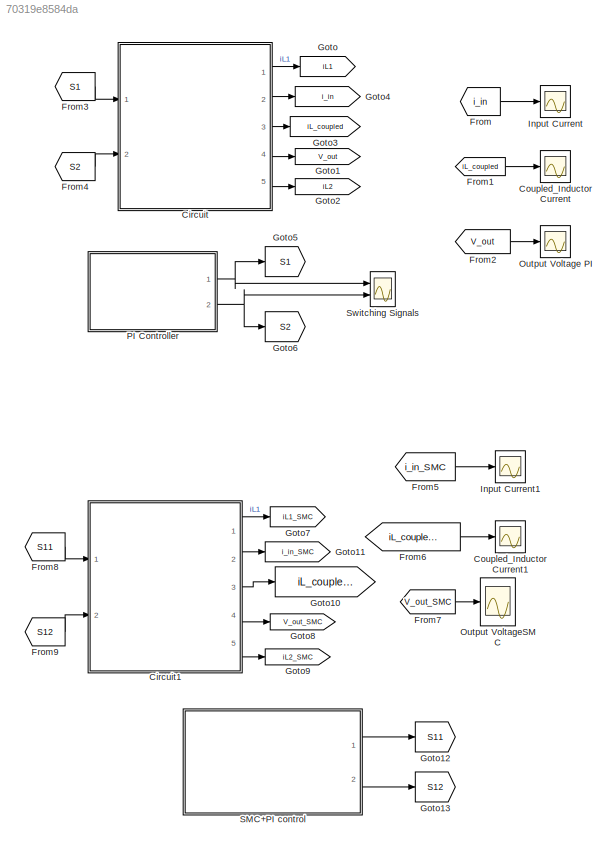
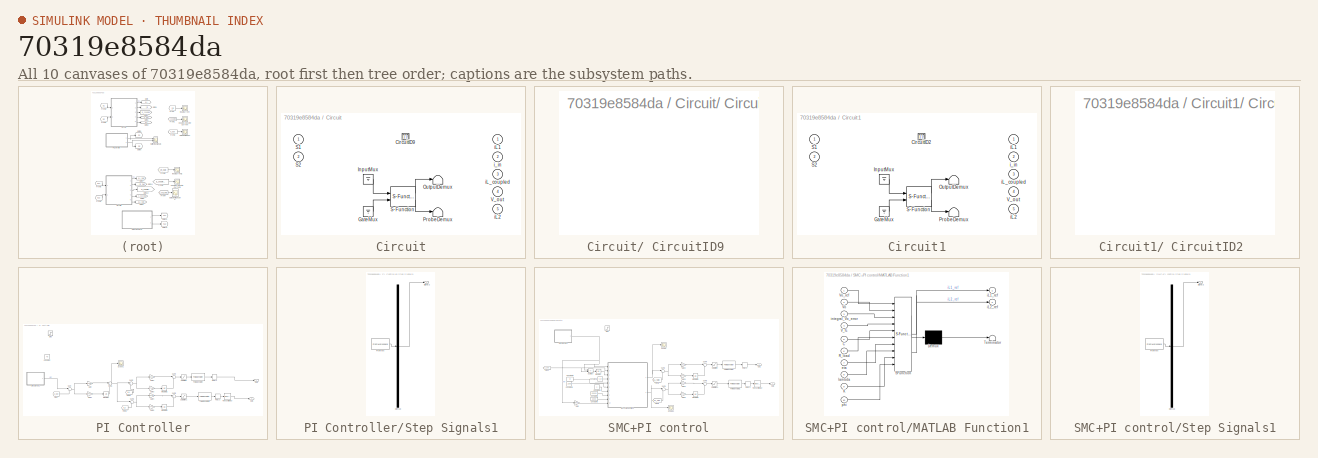
[diagram: thumbnail index - all 10 canvases of the model, root first then tree order]
MODEL slx_70319e8584da
KIND model
CONFIG AbsTol = auto
CONFIG EnableMultiTasking = off
CONFIG FixedStep = auto
CONFIG MaxStep = auto
CONFIG MinStep = auto
CONFIG RelTol = 1e-3
CONFIG SampleTimeConstraint = Unconstrained
CONFIG SolverName = ode1
CONFIG StartTime = 0.0
CONFIG StopTime = 1
BLOCK [SubSystem] Circuit
  CopyFcn = plecs('sl', 203);
  DeleteFcn = plecs('sl', 205);
  DestroyFcn = plecs('sl', 207);
  ErrorFcn = plerrorfcn
  InitFcn = plecs('sl', 214);
  LoadFcn = plecs('sl', 200);
  NameChangeFcn = plecs('sl', 210);
  OpenFcn = plecs('sl', 202);
  Ports = [2, 5]
  PostSaveFcn = plecs('sl', 201);
  PreCopyFcn = plecs('sl', 216);
  PreSaveFcn = plecs('sl', 211);
  RequestExecContextInheritance = off
  ShowPortLabels = FromPortBlockName
  StartFcn = plecs('sl', 208);
  StopFcn = plecs('sl', 209);
  UndoDeleteFcn = plecs('sl', 206);
BLOCK [SubSystem] Circuit/ CircuitID9 
  Ports = []
  RequestExecContextInheritance = off
BLOCK [Ground] Circuit/ GateMux 
BLOCK [Ground] Circuit/ InputMux 
BLOCK [Terminator] Circuit/ OutputDemux 
BLOCK [Terminator] Circuit/ ProbeDemux 
BLOCK [S-Function] Circuit/ S-Function 
  EnableBusSupport = off
  FunctionName = plecs
  Ports = [2, 2]
  SFcnIsStateOwnerBlock = off
  SFunctionDeploymentMode = off
BLOCK [Inport] Circuit/S1
  PortDimensions = 1
BLOCK [Inport] Circuit/S2
  Port = 2
  PortDimensions = 1
BLOCK [Outport] Circuit/V_out
  Port = 4
  PortDimensions = 1
BLOCK [Outport] Circuit/iL1
  PortDimensions = 1
BLOCK [Outport] Circuit/iL2
  Port = 5
  PortDimensions = 1
BLOCK [Outport] Circuit/iL_coupled
  Port = 3
  PortDimensions = 2
BLOCK [Outport] Circuit/i_in
  Port = 2
  PortDimensions = 1
BLOCK [SubSystem] Circuit1
  CopyFcn = plecs('sl', 203);
  DeleteFcn = plecs('sl', 205);
  DestroyFcn = plecs('sl', 207);
  ErrorFcn = plerrorfcn
  InitFcn = plecs('sl', 214);
  LoadFcn = plecs('sl', 200);
  NameChangeFcn = plecs('sl', 210);
  OpenFcn = plecs('sl', 202);
  Ports = [2, 5]
  PostSaveFcn = plecs('sl', 201);
  PreCopyFcn = plecs('sl', 216);
  PreSaveFcn = plecs('sl', 211);
  RequestExecContextInheritance = off
  ShowPortLabels = FromPortBlockName
  StartFcn = plecs('sl', 208);
  StopFcn = plecs('sl', 209);
  UndoDeleteFcn = plecs('sl', 206);
BLOCK [SubSystem] Circuit1/ CircuitID2 
  Ports = []
  RequestExecContextInheritance = off
BLOCK [Ground] Circuit1/ GateMux 
BLOCK [Ground] Circuit1/ InputMux 
BLOCK [Terminator] Circuit1/ OutputDemux 
BLOCK [Terminator] Circuit1/ ProbeDemux 
BLOCK [S-Function] Circuit1/ S-Function 
  EnableBusSupport = off
  FunctionName = plecs
  Ports = [2, 2]
  SFcnIsStateOwnerBlock = off
  SFunctionDeploymentMode = off
BLOCK [Inport] Circuit1/S1
  PortDimensions = 1
BLOCK [Inport] Circuit1/S2
  Port = 2
  PortDimensions = 1
BLOCK [Outport] Circuit1/V_out
  Port = 4
  PortDimensions = 1
BLOCK [Outport] Circuit1/iL1
  PortDimensions = 1
BLOCK [Outport] Circuit1/iL2
  Port = 5
  PortDimensions = 1
BLOCK [Outport] Circuit1/iL_coupled
  Port = 3
  PortDimensions = 2
BLOCK [Outport] Circuit1/i_in
  Port = 2
  PortDimensions = 1
BLOCK [Scope] Coupled_Inductor Current
  Floating = off
  NumInputPorts = 1
  Ports = [1]
  ScopeSpecificationString = Simulink.scopes.TimeScopeBlockCfg('CurrentConfiguration', extmgr.ConfigurationSet(extmgr.Configuration('Core','General UI',true),extmgr.Configuration('Core','Source UI',true),extmgr.Configuration('Sources','WiredSimulink',true,'DataLogging',true,'DataLoggingVariableName','ScopeData1','DataLoggingSaveFormat','StructureWithTime'),extmgr.Configuration('Visuals','Time Domain',true,'SerializedDisplays'...<+1552ch>
BLOCK [Scope] Coupled_Inductor Current1
  Floating = off
  NumInputPorts = 1
  Ports = [1]
  ScopeSpecificationString = Simulink.scopes.TimeScopeBlockCfg('CurrentConfiguration', extmgr.ConfigurationSet(extmgr.Configuration('Core','General UI',true),extmgr.Configuration('Core','Source UI',true),extmgr.Configuration('Sources','WiredSimulink',true,'DataLogging',true,'DataLoggingVariableName','ScopeData5','DataLoggingSaveFormat','StructureWithTime'),extmgr.Configuration('Visuals','Time Domain',true,'SerializedDisplays'...<+1551ch>
BLOCK [From] From
  GotoTag = i_in
  TagVisibility = global
BLOCK [From] From1
  GotoTag = iL_coupled
  TagVisibility = global
BLOCK [From] From2
  GotoTag = V_out
  TagVisibility = global
BLOCK [From] From3
  GotoTag = S1
BLOCK [From] From4
  GotoTag = S2
BLOCK [From] From5
  GotoTag = i_in_SMC
  TagVisibility = global
BLOCK [From] From6
  GotoTag = iL_coupled_SMC
  TagVisibility = global
BLOCK [From] From7
  GotoTag = V_out_SMC
  TagVisibility = global
BLOCK [From] From8
  GotoTag = S11
BLOCK [From] From9
  GotoTag = S12
BLOCK [Goto] Goto
  GotoTag = iL1
  TagVisibility = global
BLOCK [Goto] Goto1
  GotoTag = V_out
  TagVisibility = global
BLOCK [Goto] Goto10
  GotoTag = iL_coupled_SMC
  TagVisibility = global
BLOCK [Goto] Goto11
  GotoTag = i_in_SMC
  TagVisibility = global
BLOCK [Goto] Goto12
  GotoTag = S11
BLOCK [Goto] Goto13
  GotoTag = S12
BLOCK [Goto] Goto2
  GotoTag = iL2
  TagVisibility = global
BLOCK [Goto] Goto3
  GotoTag = iL_coupled
  TagVisibility = global
BLOCK [Goto] Goto4
  GotoTag = i_in
  TagVisibility = global
BLOCK [Goto] Goto5
  GotoTag = S1
BLOCK [Goto] Goto6
  GotoTag = S2
BLOCK [Goto] Goto7
  GotoTag = iL1_SMC
  TagVisibility = global
BLOCK [Goto] Goto8
  GotoTag = V_out_SMC
  TagVisibility = global
BLOCK [Goto] Goto9
  GotoTag = iL2_SMC
  TagVisibility = global
BLOCK [Scope] Input Current
  Floating = off
  NumInputPorts = 1
  Ports = [1]
  ScopeSpecificationString = Simulink.scopes.TimeScopeBlockCfg('CurrentConfiguration', extmgr.ConfigurationSet(extmgr.Configuration('Core','General UI',true),extmgr.Configuration('Core','Source UI',true),extmgr.Configuration('Sources','WiredSimulink',true,'DataLogging',true,'DataLoggingVariableName','ScopeData2','DataLoggingSaveFormat','StructureWithTime'),extmgr.Configuration('Visuals','Time Domain',true,'SerializedDisplays'...<+1535ch>
BLOCK [Scope] Input Current1
  Floating = off
  NumInputPorts = 1
  Ports = [1]
  ScopeSpecificationString = Simulink.scopes.TimeScopeBlockCfg('CurrentConfiguration', extmgr.ConfigurationSet(extmgr.Configuration('Core','General UI',true),extmgr.Configuration('Core','Source UI',true),extmgr.Configuration('Sources','WiredSimulink',true,'DataLogging',true,'DataLoggingVariableName','ScopeData6','DataLoggingSaveFormat','StructureWithTime'),extmgr.Configuration('Visuals','Time Domain',true,'SerializedDisplays'...<+1534ch>
BLOCK [Scope] Output Voltage PI
  Floating = off
  NumInputPorts = 1
  Ports = [1]
  ScopeSpecificationString = Simulink.scopes.TimeScopeBlockCfg('CurrentConfiguration', extmgr.ConfigurationSet(extmgr.Configuration('Core','General UI',true),extmgr.Configuration('Core','Source UI',true),extmgr.Configuration('Sources','WiredSimulink',true,'DataLogging',true,'DataLoggingVariableName','Vout_PI','DataLoggingSaveFormat','StructureWithTime'),extmgr.Configuration('Visuals','Time Domain',true,'SerializedDisplays',{s...<+1530ch>
BLOCK [Scope] Output VoltageSMC
  Floating = off
  NumInputPorts = 1
  Ports = [1]
  ScopeSpecificationString = Simulink.scopes.TimeScopeBlockCfg('CurrentConfiguration', extmgr.ConfigurationSet(extmgr.Configuration('Core','General UI',true),extmgr.Configuration('Core','Source UI',true),extmgr.Configuration('Sources','WiredSimulink',true,'DataLogging',true,'DataLoggingVariableName','Vout_SMC','DataLoggingSaveFormat','StructureWithTime'),extmgr.Configuration('Visuals','Time Domain',true,'SerializedDisplays',{...<+2057ch>
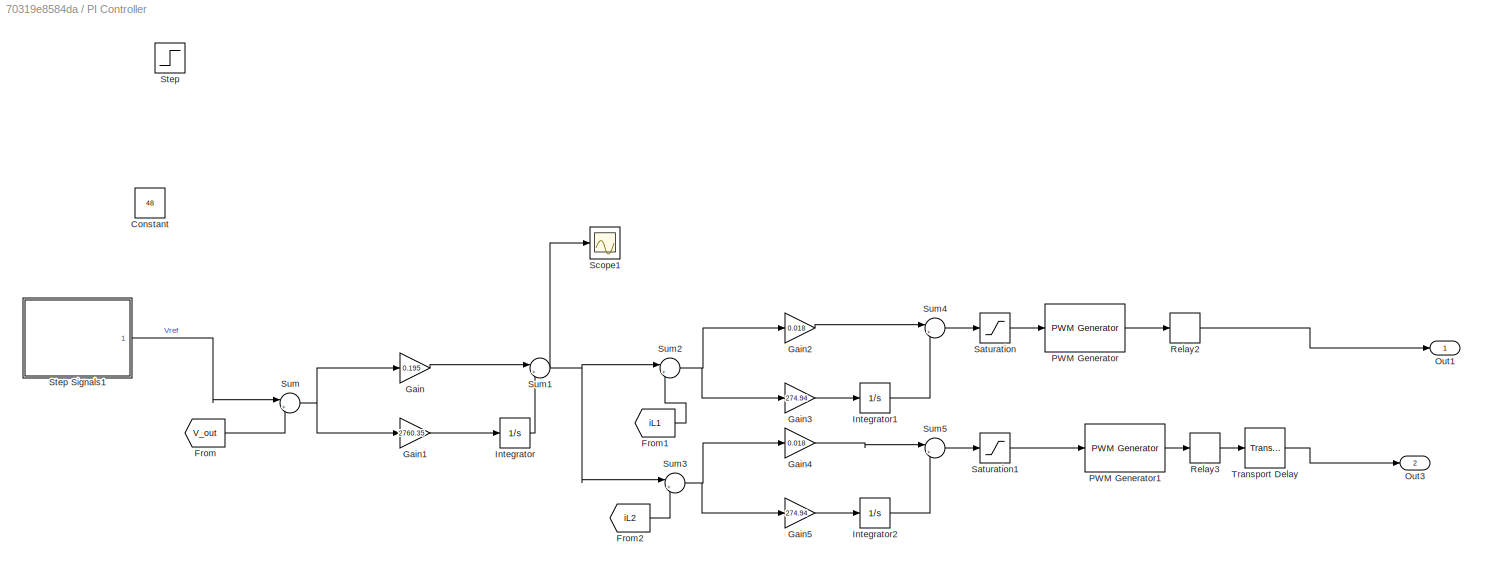
BLOCK [SubSystem] PI Controller
  Ports = [0, 2]
  RequestExecContextInheritance = off
BLOCK [Constant] PI Controller/Constant
  Commented = on
  Value = 48
BLOCK [From] PI Controller/From
  GotoTag = V_out
  TagVisibility = global
BLOCK [From] PI Controller/From1
  GotoTag = iL1
  TagVisibility = global
BLOCK [From] PI Controller/From2
  GotoTag = iL2
  TagVisibility = global
BLOCK [Gain] PI Controller/Gain
  Gain = 0.195
BLOCK [Gain] PI Controller/Gain1
  Gain = 2760.35
BLOCK [Gain] PI Controller/Gain2
  Gain = 0.018
BLOCK [Gain] PI Controller/Gain3
  Gain = 274.94
BLOCK [Gain] PI Controller/Gain4
  Gain = 0.018
BLOCK [Gain] PI Controller/Gain5
  Gain = 274.94
BLOCK [Integrator] PI Controller/Integrator
  Ports = [1, 1]
BLOCK [Integrator] PI Controller/Integrator1
  Ports = [1, 1]
BLOCK [Integrator] PI Controller/Integrator2
  Ports = [1, 1]
BLOCK [Outport] PI Controller/Out1
BLOCK [Outport] PI Controller/Out3
  Port = 2
BLOCK [Reference] PI Controller/PWM Generator  REF=eePwmGenerator/PWM Generator
  Ports = [1, 1]
  SourceBlock = eePwmGenerator/PWM Generator
  SourceProductBaseCode = PS
  SourceType = PWM Generator
BLOCK [Reference] PI Controller/PWM Generator1  REF=eePwmGenerator/PWM Generator
  Ports = [1, 1]
  SourceBlock = eePwmGenerator/PWM Generator
  SourceProductBaseCode = PS
  SourceType = PWM Generator
BLOCK [Relay] PI Controller/Relay2
BLOCK [Relay] PI Controller/Relay3
BLOCK [Saturate] PI Controller/Saturation
  LowerLimit = 0.1
  UpperLimit = 0.9
BLOCK [Saturate] PI Controller/Saturation1
  LowerLimit = 0.1
  UpperLimit = 0.9
BLOCK [Scope] PI Controller/Scope1
  Floating = off
  NumInputPorts = 1
  Ports = [1]
  ScopeSpecificationString = Simulink.scopes.TimeScopeBlockCfg('CurrentConfiguration', extmgr.ConfigurationSet(extmgr.Configuration('Core','General UI',true),extmgr.Configuration('Core','Source UI',true),extmgr.Configuration('Sources','WiredSimulink',true,'DataLoggingVariableName','ScopeData1'),extmgr.Configuration('Visuals','Time Domain',true,'SerializedDisplays',{struct('MinYLimReal','7.31759','MaxYLimReal','27.74166','YLab...<+1417ch>
BLOCK [Step] PI Controller/Step
  After = 40
  Before = 48
  Commented = on
  SampleTime = 0
  Time = 0.06
BLOCK [SubSystem] PI Controller/Step Signals1
  ClipboardFcn = sigbuilder_block('clipboard');
  CloseFcn = sigbuilder_block('close');
  ContinueFcn = sigbuilder_block('continue');
  CopyFcn = sigbuilder_block('copy');
  DeleteFcn = sigbuilder_block('delete');
  LoadFcn = sigbuilder_block('load');
  MaskHideContents = on
  ModelCloseFcn = sigbuilder_block('modelClose');
  NameChangeFcn = sigbuilder_block('namechange');
  OpenFcn = sigbuilder_block('open',[6 36 1428 675.75 ]);
  PauseFcn = sigbuilder_block('pause');
  Ports = [0, 1]
  PreSaveFcn = sigbuilder_block('preSave');
  RequestExecContextInheritance = off
  StartFcn = sigbuilder_block('start');
  StopFcn = sigbuilder_block('stop');
  Tag = STV Subsys
BLOCK [Demux] PI Controller/Step Signals1/Demux
  DisplayOption = none
  Outputs = 1
  Ports = [1, 1]
  Tag = STV Demux
BLOCK [FromWorkspace] PI Controller/Step Signals1/FromWs
  Tag = STV FromWs
  VariableName = tuvar
BLOCK [Outport] PI Controller/Step Signals1/Signal 2
  Tag = STV Outport
BLOCK [Sum] PI Controller/Sum
  Inputs = |+-
  Ports = [2, 1]
BLOCK [Sum] PI Controller/Sum1
  Inputs = |++
  Ports = [2, 1]
BLOCK [Sum] PI Controller/Sum2
  Inputs = |+-
  Ports = [2, 1]
BLOCK [Sum] PI Controller/Sum3
  Inputs = |+-
  Ports = [2, 1]
BLOCK [Sum] PI Controller/Sum4
  Inputs = |++
  Ports = [2, 1]
BLOCK [Sum] PI Controller/Sum5
  Inputs = |++
  Ports = [2, 1]
BLOCK [TransportDelay] PI Controller/Transport Delay
  DelayTime = 1e-5
  Ports = [1, 1]
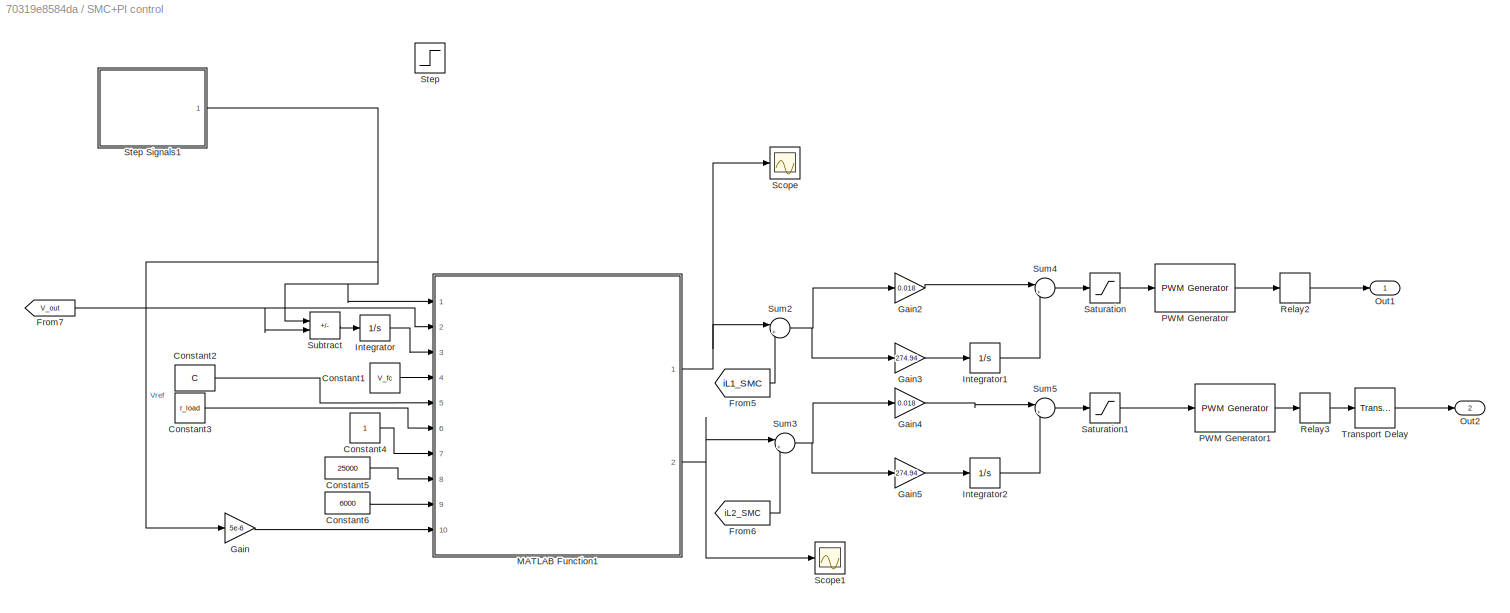
BLOCK [SubSystem] SMC+PI control
  Ports = [0, 2]
  RequestExecContextInheritance = off
BLOCK [Constant] SMC+PI control/Constant1
  Value = V_fc
BLOCK [Constant] SMC+PI control/Constant2
  Value = C
BLOCK [Constant] SMC+PI control/Constant3
  Value = r_load
BLOCK [Constant] SMC+PI control/Constant4
BLOCK [Constant] SMC+PI control/Constant5
  Value = 25000
BLOCK [Constant] SMC+PI control/Constant6
  Value = 6000
BLOCK [From] SMC+PI control/From5
  GotoTag = iL1_SMC
  TagVisibility = global
BLOCK [From] SMC+PI control/From6
  GotoTag = iL2_SMC
  TagVisibility = global
BLOCK [From] SMC+PI control/From7
  GotoTag = V_out
  TagVisibility = global
BLOCK [Gain] SMC+PI control/Gain
  Gain = 5e-6
BLOCK [Gain] SMC+PI control/Gain2
  Gain = 0.018
BLOCK [Gain] SMC+PI control/Gain3
  Gain = 274.94
BLOCK [Gain] SMC+PI control/Gain4
  Gain = 0.018
BLOCK [Gain] SMC+PI control/Gain5
  Gain = 274.94
BLOCK [Integrator] SMC+PI control/Integrator
  Ports = [1, 1]
BLOCK [Integrator] SMC+PI control/Integrator1
  Ports = [1, 1]
BLOCK [Integrator] SMC+PI control/Integrator2
  Ports = [1, 1]
BLOCK [SubSystem] SMC+PI control/MATLAB Function1
  ErrorFcn = Stateflow.Translate.translate
  PermitHierarchicalResolution = ExplicitOnly
  Ports = [10, 2]
  RequestExecContextInheritance = off
  SFBlockType = MATLAB Function
  TreatAsAtomicUnit = on
BLOCK [Demux] SMC+PI control/MATLAB Function1/ Demux 
  Outputs = 1
  Ports = [1, 1]
BLOCK [S-Function] SMC+PI control/MATLAB Function1/ SFunction 
  EnableBusSupport = on
  FunctionName = sf_sfun
  PortCounts = [10 3]
  Ports = [10, 3]
  SFcnIsStateOwnerBlock = off
  SFunctionDeploymentMode = off
  Tag = Stateflow S-Function 1
BLOCK [Terminator] SMC+PI control/MATLAB Function1/ Terminator 
BLOCK [Inport] SMC+PI control/MATLAB Function1/C
  Port = 5
BLOCK [Inport] SMC+PI control/MATLAB Function1/K
  Port = 9
BLOCK [Inport] SMC+PI control/MATLAB Function1/R_load
  Port = 6
BLOCK [Inport] SMC+PI control/MATLAB Function1/V_fc
  Port = 4
BLOCK [Inport] SMC+PI control/MATLAB Function1/Vo
  Port = 2
BLOCK [Inport] SMC+PI control/MATLAB Function1/Vo_ref
BLOCK [Inport] SMC+PI control/MATLAB Function1/eta
  Port = 7
BLOCK [Outport] SMC+PI control/MATLAB Function1/iL1_ref
BLOCK [Outport] SMC+PI control/MATLAB Function1/iL2_ref
  Port = 2
BLOCK [Inport] SMC+PI control/MATLAB Function1/integral_Vo_error
  Port = 3
BLOCK [Inport] SMC+PI control/MATLAB Function1/lambda
  Port = 8
BLOCK [Inport] SMC+PI control/MATLAB Function1/phi
  Port = 10
BLOCK [Outport] SMC+PI control/Out1
BLOCK [Outport] SMC+PI control/Out2
  Port = 2
BLOCK [Reference] SMC+PI control/PWM Generator  REF=eePwmGenerator/PWM Generator
  Ports = [1, 1]
  SourceBlock = eePwmGenerator/PWM Generator
  SourceProductBaseCode = PS
  SourceType = PWM Generator
BLOCK [Reference] SMC+PI control/PWM Generator1  REF=eePwmGenerator/PWM Generator
  Ports = [1, 1]
  SourceBlock = eePwmGenerator/PWM Generator
  SourceProductBaseCode = PS
  SourceType = PWM Generator
BLOCK [Relay] SMC+PI control/Relay2
BLOCK [Relay] SMC+PI control/Relay3
BLOCK [Saturate] SMC+PI control/Saturation
  LowerLimit = 0.1
  UpperLimit = 0.97
BLOCK [Saturate] SMC+PI control/Saturation1
  LowerLimit = 0.1
  UpperLimit = 0.97
BLOCK [Scope] SMC+PI control/Scope
  Floating = off
  NumInputPorts = 1
  Ports = [1]
  ScopeSpecificationString = Simulink.scopes.TimeScopeBlockCfg('CurrentConfiguration', extmgr.ConfigurationSet(extmgr.Configuration('Core','General UI',true),extmgr.Configuration('Core','Source UI',true),extmgr.Configuration('Sources','WiredSimulink',true,'DataLoggingVariableName','ScopeData4'),extmgr.Configuration('Visuals','Time Domain',true,'SerializedDisplays',{struct('MinYLimReal','8.9447','MaxYLimReal','27.82937','YLabe...<+1481ch>
BLOCK [Scope] SMC+PI control/Scope1
  Floating = off
  NumInputPorts = 1
  Ports = [1]
  ScopeSpecificationString = Simulink.scopes.TimeScopeBlockCfg('CurrentConfiguration', extmgr.ConfigurationSet(extmgr.Configuration('Core','General UI',true),extmgr.Configuration('Core','Source UI',true),extmgr.Configuration('Sources','WiredSimulink',true,'DataLoggingVariableName','ScopeData5'),extmgr.Configuration('Visuals','Time Domain',true,'SerializedDisplays',{struct('MinYLimReal','10.37704','MaxYLimReal','19.01536','YLa...<+1389ch>
BLOCK [Step] SMC+PI control/Step
  After = 40
  Before = 48
  Commented = on
  SampleTime = 0
  Time = 0.2
BLOCK [SubSystem] SMC+PI control/Step Signals1
  ClipboardFcn = sigbuilder_block('clipboard');
  CloseFcn = sigbuilder_block('close');
  ContinueFcn = sigbuilder_block('continue');
  CopyFcn = sigbuilder_block('copy');
  DeleteFcn = sigbuilder_block('delete');
  LoadFcn = sigbuilder_block('load');
  MaskHideContents = on
  ModelCloseFcn = sigbuilder_block('modelClose');
  NameChangeFcn = sigbuilder_block('namechange');
  OpenFcn = sigbuilder_block('open',[6 36 1428 675.75 ]);
  PauseFcn = sigbuilder_block('pause');
  Ports = [0, 1]
  PreSaveFcn = sigbuilder_block('preSave');
  RequestExecContextInheritance = off
  StartFcn = sigbuilder_block('start');
  StopFcn = sigbuilder_block('stop');
  Tag = STV Subsys
BLOCK [Demux] SMC+PI control/Step Signals1/Demux
  DisplayOption = none
  Outputs = 1
  Ports = [1, 1]
  Tag = STV Demux
BLOCK [FromWorkspace] SMC+PI control/Step Signals1/FromWs
  Tag = STV FromWs
  VariableName = tuvar
BLOCK [Outport] SMC+PI control/Step Signals1/Signal 2
  Tag = STV Outport
BLOCK [Sum] SMC+PI control/Subtract
  IconShape = rectangular
  Inputs = +-
  Ports = [2, 1]
BLOCK [Sum] SMC+PI control/Sum2
  Inputs = |+-
  Ports = [2, 1]
BLOCK [Sum] SMC+PI control/Sum3
  Inputs = |+-
  Ports = [2, 1]
BLOCK [Sum] SMC+PI control/Sum4
  Inputs = |++
  Ports = [2, 1]
BLOCK [Sum] SMC+PI control/Sum5
  Inputs = |++
  Ports = [2, 1]
BLOCK [TransportDelay] SMC+PI control/Transport Delay
  DelayTime = 1e-5
  Ports = [1, 1]
BLOCK [Scope] Switching Signals
  Floating = off
  NumInputPorts = 2
  Ports = [2]
  ScopeSpecificationString = Simulink.scopes.TimeScopeBlockCfg('CurrentConfiguration', extmgr.ConfigurationSet(extmgr.Configuration('Core','General UI',true),extmgr.Configuration('Core','Source UI',true),extmgr.Configuration('Sources','WiredSimulink',true,'DataLoggingVariableName','ScopeData4'),extmgr.Configuration('Visuals','Time Domain',true,'SerializedDisplays',{struct('MinYLimReal','-0.125','MaxYLimReal','1.125','YLabelRe...<+2155ch>
LINE Circuit1:1 -> Goto7:1
LINE Circuit1:2 -> Goto11:1
LINE Circuit1:3 -> Goto10:1
LINE Circuit1:4 -> Goto8:1
LINE Circuit1:5 -> Goto9:1
LINE Circuit:1 -> Goto:1
LINE Circuit:2 -> Goto4:1
LINE Circuit:3 -> Goto3:1
LINE Circuit:4 -> Goto1:1
LINE Circuit:5 -> Goto2:1
LINE From1:1 -> Coupled_Inductor Current:1
LINE From2:1 -> Output Voltage PI:1
LINE From3:1 -> Circuit:1
LINE From4:1 -> Circuit:2
LINE From5:1 -> Input Current1:1
LINE From6:1 -> Coupled_Inductor Current1:1
LINE From7:1 -> Output VoltageSMC:1
LINE From8:1 -> Circuit1:1
LINE From9:1 -> Circuit1:2
LINE From:1 -> Input Current:1
LINE PI Controller/From1:1 -> PI Controller/Sum2:2
LINE PI Controller/From2:1 -> PI Controller/Sum3:2
LINE PI Controller/From:1 -> PI Controller/Sum:2
LINE PI Controller/Gain1:1 -> PI Controller/Integrator:1
LINE PI Controller/Gain2:1 -> PI Controller/Sum4:1
LINE PI Controller/Gain3:1 -> PI Controller/Integrator1:1
LINE PI Controller/Gain4:1 -> PI Controller/Sum5:1
LINE PI Controller/Gain5:1 -> PI Controller/Integrator2:1
LINE PI Controller/Gain:1 -> PI Controller/Sum1:1
LINE PI Controller/Integrator1:1 -> PI Controller/Sum4:2
LINE PI Controller/Integrator2:1 -> PI Controller/Sum5:2
LINE PI Controller/Integrator:1 -> PI Controller/Sum1:2
LINE PI Controller/PWM Generator1:1 -> PI Controller/Relay3:1
LINE PI Controller/PWM Generator:1 -> PI Controller/Relay2:1
LINE PI Controller/Relay2:1 -> PI Controller/Out1:1
LINE PI Controller/Relay3:1 -> PI Controller/Transport Delay:1
LINE PI Controller/Saturation1:1 -> PI Controller/PWM Generator1:1
LINE PI Controller/Saturation:1 -> PI Controller/PWM Generator:1
LINE PI Controller/Step Signals1:1 -> PI Controller/Sum:1
NET PI Controller/Sum1:1 -> PI Controller/Scope1:1, PI Controller/Sum2:1, PI Controller/Sum3:1
NET PI Controller/Sum2:1 -> PI Controller/Gain2:1, PI Controller/Gain3:1
NET PI Controller/Sum3:1 -> PI Controller/Gain4:1, PI Controller/Gain5:1
LINE PI Controller/Sum4:1 -> PI Controller/Saturation:1
LINE PI Controller/Sum5:1 -> PI Controller/Saturation1:1
NET PI Controller/Sum:1 -> PI Controller/Gain1:1, PI Controller/Gain:1
LINE PI Controller/Transport Delay:1 -> PI Controller/Out3:1
NET PI Controller:1 -> Goto5:1, Switching Signals:1
NET PI Controller:2 -> Goto6:1, Switching Signals:2
LINE SMC+PI control/Constant1:1 -> SMC+PI control/MATLAB Function1:4
LINE SMC+PI control/Constant2:1 -> SMC+PI control/MATLAB Function1:5
LINE SMC+PI control/Constant3:1 -> SMC+PI control/MATLAB Function1:6
LINE SMC+PI control/Constant4:1 -> SMC+PI control/MATLAB Function1:7
LINE SMC+PI control/Constant5:1 -> SMC+PI control/MATLAB Function1:8
LINE SMC+PI control/Constant6:1 -> SMC+PI control/MATLAB Function1:9
LINE SMC+PI control/From5:1 -> SMC+PI control/Sum2:2
LINE SMC+PI control/From6:1 -> SMC+PI control/Sum3:2
NET SMC+PI control/From7:1 -> SMC+PI control/MATLAB Function1:2, SMC+PI control/Subtract:2
LINE SMC+PI control/Gain2:1 -> SMC+PI control/Sum4:1
LINE SMC+PI control/Gain3:1 -> SMC+PI control/Integrator1:1
LINE SMC+PI control/Gain4:1 -> SMC+PI control/Sum5:1
LINE SMC+PI control/Gain5:1 -> SMC+PI control/Integrator2:1
LINE SMC+PI control/Gain:1 -> SMC+PI control/MATLAB Function1:10
LINE SMC+PI control/Integrator1:1 -> SMC+PI control/Sum4:2
LINE SMC+PI control/Integrator2:1 -> SMC+PI control/Sum5:2
LINE SMC+PI control/Integrator:1 -> SMC+PI control/MATLAB Function1:3
NET SMC+PI control/MATLAB Function1:1 -> SMC+PI control/Scope:1, SMC+PI control/Sum2:1
NET SMC+PI control/MATLAB Function1:2 -> SMC+PI control/Scope1:1, SMC+PI control/Sum3:1
LINE SMC+PI control/PWM Generator1:1 -> SMC+PI control/Relay3:1
LINE SMC+PI control/PWM Generator:1 -> SMC+PI control/Relay2:1
LINE SMC+PI control/Relay2:1 -> SMC+PI control/Out1:1
LINE SMC+PI control/Relay3:1 -> SMC+PI control/Transport Delay:1
LINE SMC+PI control/Saturation1:1 -> SMC+PI control/PWM Generator1:1
LINE SMC+PI control/Saturation:1 -> SMC+PI control/PWM Generator:1
NET SMC+PI control/Step Signals1:1 -> SMC+PI control/Gain:1, SMC+PI control/MATLAB Function1:1, SMC+PI control/Subtract:1
LINE SMC+PI control/Subtract:1 -> SMC+PI control/Integrator:1
NET SMC+PI control/Sum2:1 -> SMC+PI control/Gain2:1, SMC+PI control/Gain3:1
NET SMC+PI control/Sum3:1 -> SMC+PI control/Gain4:1, SMC+PI control/Gain5:1
LINE SMC+PI control/Sum4:1 -> SMC+PI control/Saturation:1
LINE SMC+PI control/Sum5:1 -> SMC+PI control/Saturation1:1
LINE SMC+PI control/Transport Delay:1 -> SMC+PI control/Out2:1
LINE SMC+PI control:1 -> Goto12:1
LINE SMC+PI control:2 -> Goto13:1
note: NET lines group one-source signal fan-out (src -> all destinations, sorted); 1:1 wires keep LINE
CHART SMC+PI control/MATLAB Function1 states=1 transitions=1
  STATE_LABEL 'eML_blk_kernel()'
  STATE_LABEL 'SCRIPT:\nfunction [iL1_ref, iL2_ref] = Outer_SMC(Vo_ref, Vo, integral_Vo_error, V_fc, C, R_load, eta, lambda, K, phi)\n    %% System Parameters (Optimized for ±0.5V Error)\n%     V_fc = 14.4;          % Input voltage [V] (measured under load)\n%     C = 100e-6;          % Output capacitance [F] \n%     R_load = 5;          % Load resistance [Ω] (48V/500W = 4.608Ω, adjust if needed)\n%     eta = 0.97;   ...<+1170ch>'
CHART  states=0 transitions=0
